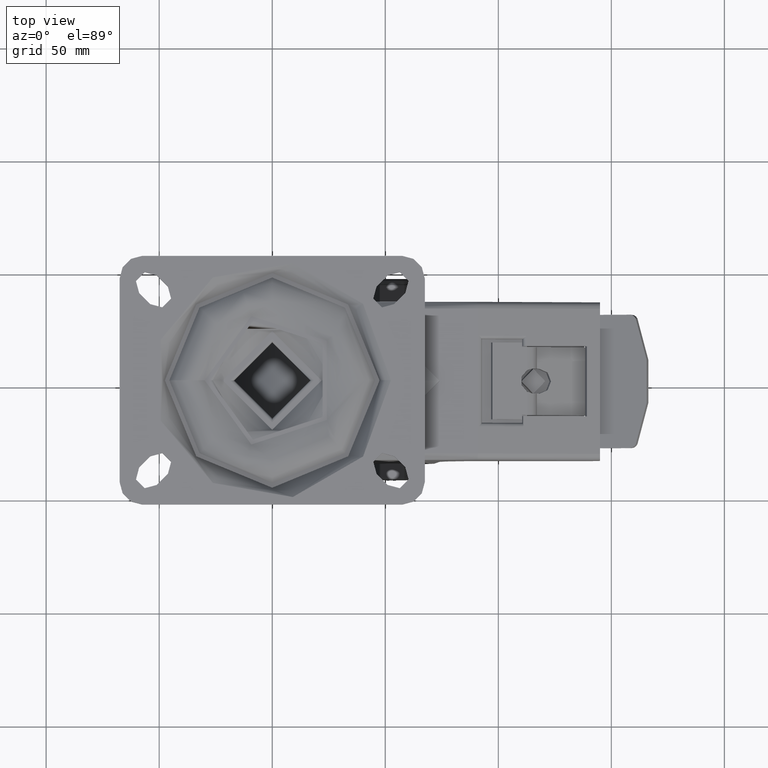
[diagram: clean part render]
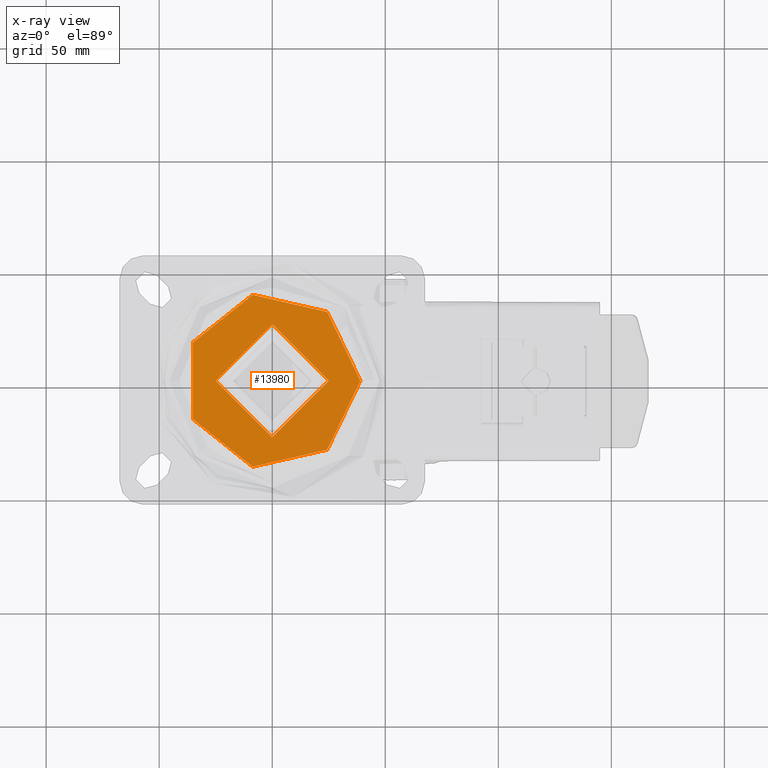
[diagram: x-ray — body ghosted, one internal face saturated and labeled with its STEP entity id]
A machine part, top view, then the same camera in x-ray: the body is ghosted and one INTERNAL B-rep face — a face not visible from any outside direction — is saturated and labeled: STEP entity #13980.
In plain terms, the highlighted planar face has unit normal (-0, -0, 1).
Its self-contained STEP definition (entity closure, byte-faithful):
#805=FACE_BOUND('',#2818,.T.);
#984=PLANE('',#15224);
#1929=FACE_OUTER_BOUND('',#2817,.T.);
#2817=EDGE_LOOP('',(#9812));
#2818=EDGE_LOOP('',(#9813));
#5273=CIRCLE('',#15143,39.);
#5278=CIRCLE('',#15150,25.);
#6129=VERTEX_POINT('',#21048);
#6134=VERTEX_POINT('',#21062);
#7475=EDGE_CURVE('',#6129,#6129,#5273,.T.);
#7483=EDGE_CURVE('',#6134,#6134,#5278,.T.);
#9812=ORIENTED_EDGE('',*,*,#7475,.T.);
#9813=ORIENTED_EDGE('',*,*,#7483,.F.);
#13980=ADVANCED_FACE('',(#1929,#805),#984,.T.);
#15143=AXIS2_PLACEMENT_3D('',#21049,#16940,#16941);
#15150=AXIS2_PLACEMENT_3D('',#21064,#16957,#16958);
#15224=AXIS2_PLACEMENT_3D('',#23789,#17137,#17138);
#16940=DIRECTION('center_axis',(-1.93030100886362E-15,2.73384535902386E-33,
1.));
#16941=DIRECTION('ref_axis',(-1.,1.23674392377418E-16,-1.93030100886362E-15));
#16957=DIRECTION('center_axis',(-1.93030100886362E-15,2.73384535902385E-33,
1.));
#16958=DIRECTION('ref_axis',(-1.,1.23674392377418E-16,-1.93030100886362E-15));
#17137=DIRECTION('center_axis',(-2.0794209301343E-47,-2.35994959017701E-31,
1.));
#17138=DIRECTION('ref_axis',(-1.,8.8112938462314E-17,0.));
#21048=CARTESIAN_POINT('',(39.,-9.59942381939398E-15,-17.9999999999998));
#21049=CARTESIAN_POINT('Origin',(1.81278603239574E-14,6.35346620097663E-47,
-17.9999999999999));
#21062=CARTESIAN_POINT('',(25.,-6.15347680730383E-15,-17.9999999999999));
#21064=CARTESIAN_POINT('Origin',(1.81278603239575E-14,-1.03453603546458E-47,
-18.));
#23789=CARTESIAN_POINT('Origin',(-32.,6.16790569236195E-16,-18.));